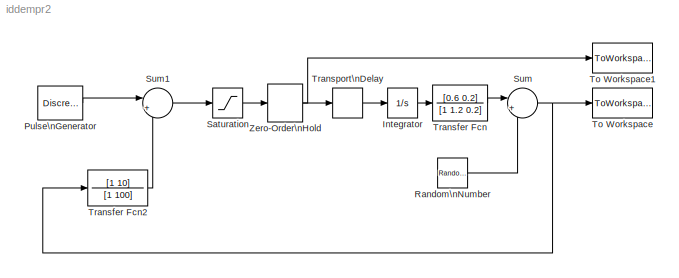
MODEL iddempr2
KIND model
CONFIG AbsTol = auto
CONFIG FixedStep = auto
CONFIG MaxStep = auto
CONFIG MinStep = auto
CONFIG RelTol = 1e-3
CONFIG Solver = ode45
CONFIG SolverMode = Auto
CONFIG StartTime = 0.0
CONFIG StopTime = 500
BLOCK [Integrator] Integrator
  AbsoluteTolerance = auto
  ExternalReset = none
  InitialCondition = 0
  InitialConditionSource = internal
  LimitOutput = off
  LowerSaturationLimit = -inf
  Ports = [1, 1]
  ShowSaturationPort = off
  ShowStatePort = off
  UpperSaturationLimit = inf
BLOCK [DiscretePulseGenerator] Pulse\nGenerator
  Amplitude = 1
  Period = 200
  PhaseDelay = 0
  PulseType = Sample-based
  PulseWidth = 50
  SampleTime = 1
  VectorParams1D = on
BLOCK [RandomNumber] Random\nNumber
  Mean = 0
  SampleTime = 1
  Seed = 0
  Variance = 0.1
  VectorParams1D = on
BLOCK [Saturate] Saturation
  LinearizeAsGain = on
  LowerLimit = -0.5
  UpperLimit = 0.5
BLOCK [Sum] Sum
  IconShape = round
  Inputs = |++
  Ports = [2, 1]
  SaturateOnIntegerOverflow = on
BLOCK [Sum] Sum1
  IconShape = round
  Inputs = |+-
  Ports = [2, 1]
  SaturateOnIntegerOverflow = on
BLOCK [ToWorkspace] To Workspace
  Decimation = 1
  MaxDataPoints = inf
  SampleTime = 1
  SaveFormat = Array
  VariableName = y
BLOCK [ToWorkspace] To Workspace1
  Decimation = 1
  MaxDataPoints = inf
  SampleTime = 1
  SaveFormat = Array
  VariableName = u
BLOCK [TransferFcn] Transfer Fcn
  AbsoluteTolerance = auto
  Denominator = [1 1.2  0.2]
  Numerator = [0.6 0.2]
  Realization = auto
BLOCK [TransferFcn] Transfer Fcn2
  AbsoluteTolerance = auto
  Denominator = [1 100]
  Numerator = [1 10]
  Realization = auto
BLOCK [TransportDelay] Transport\nDelay
  BufferSize = 1024
  DelayTime = 2.2
  InitialInput = 0
  PadeOrder = 0
BLOCK [ZeroOrderHold] Zero-Order\nHold
  SampleTime = 1
LINE Integrator:1 -> Transfer Fcn:1
LINE Pulse\nGenerator:1 -> Sum1:1
LINE Random\nNumber:1 -> Sum:2
LINE Saturation:1 -> Zero-Order\nHold:1
LINE Sum1:1 -> Saturation:1
NET Sum:1 -> To Workspace:1, Transfer Fcn2:1
LINE Transfer Fcn2:1 -> Sum1:2
LINE Transfer Fcn:1 -> Sum:1
LINE Transport\nDelay:1 -> Integrator:1
NET Zero-Order\nHold:1 -> To Workspace1:1, Transport\nDelay:1
note: NET lines group one-source signal fan-out (src -> all destinations, sorted); 1:1 wires keep LINE
